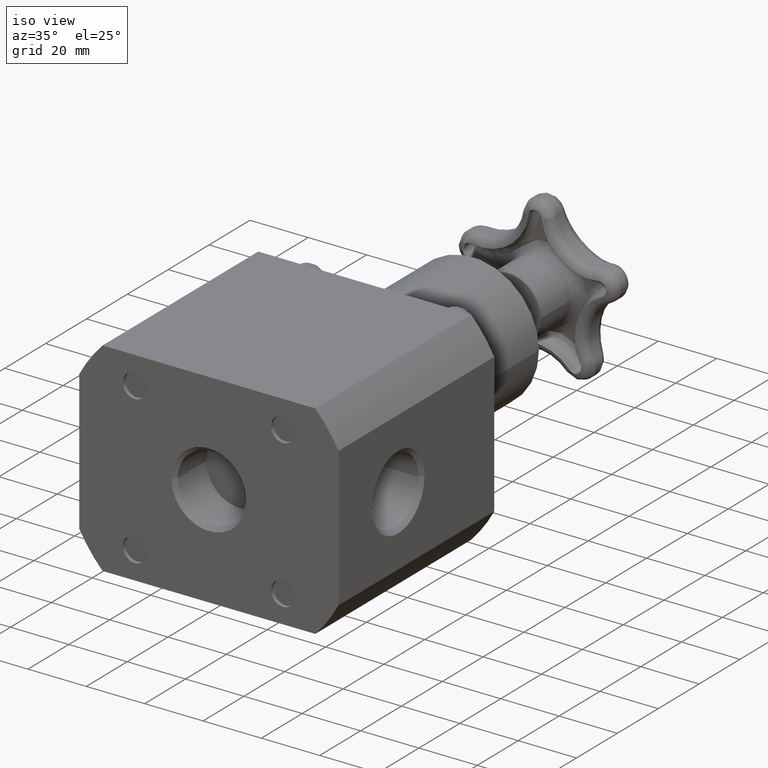
[diagram: clean part render]
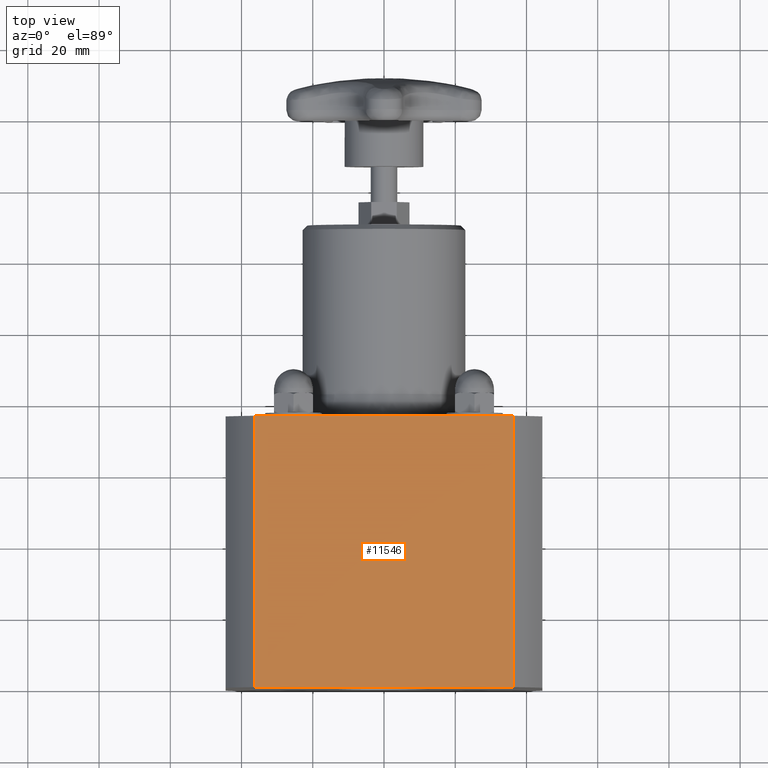
[diagram: tour spotlight — one face highlighted and labeled with its STEP entity id]
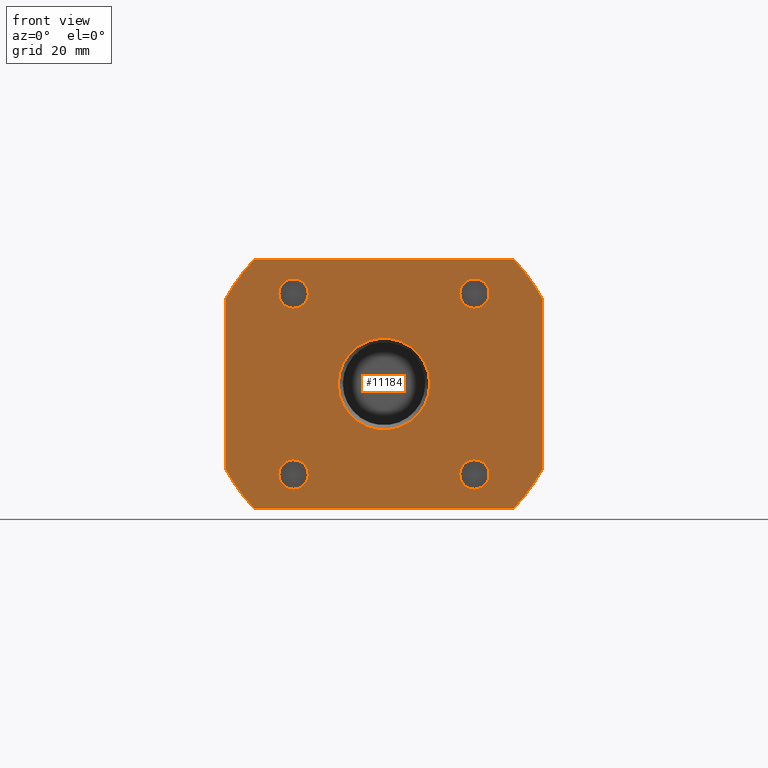
[diagram: tour spotlight — one face highlighted and labeled with its STEP entity id]
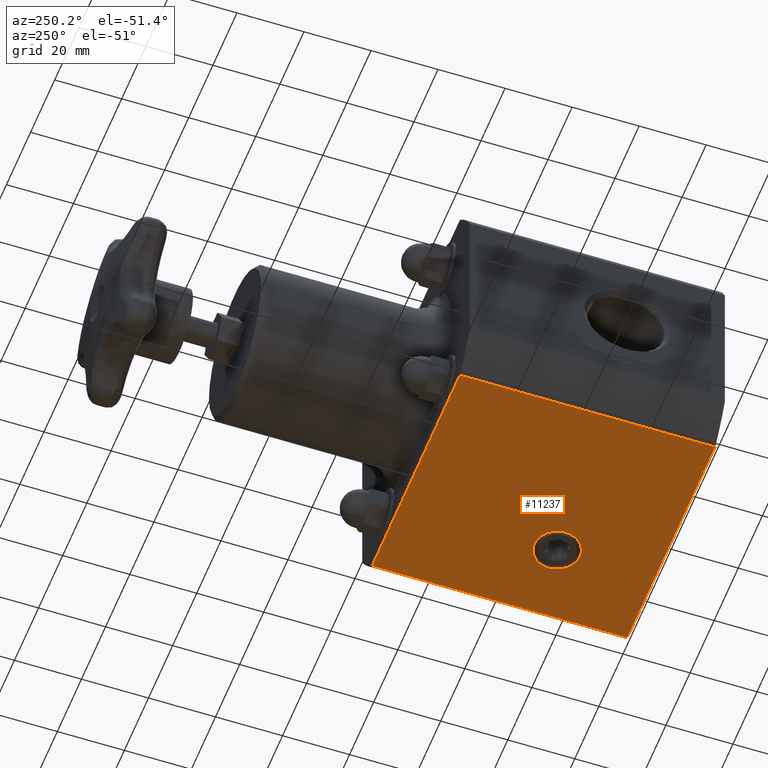
[diagram: tour spotlight — one face highlighted and labeled with its STEP entity id]
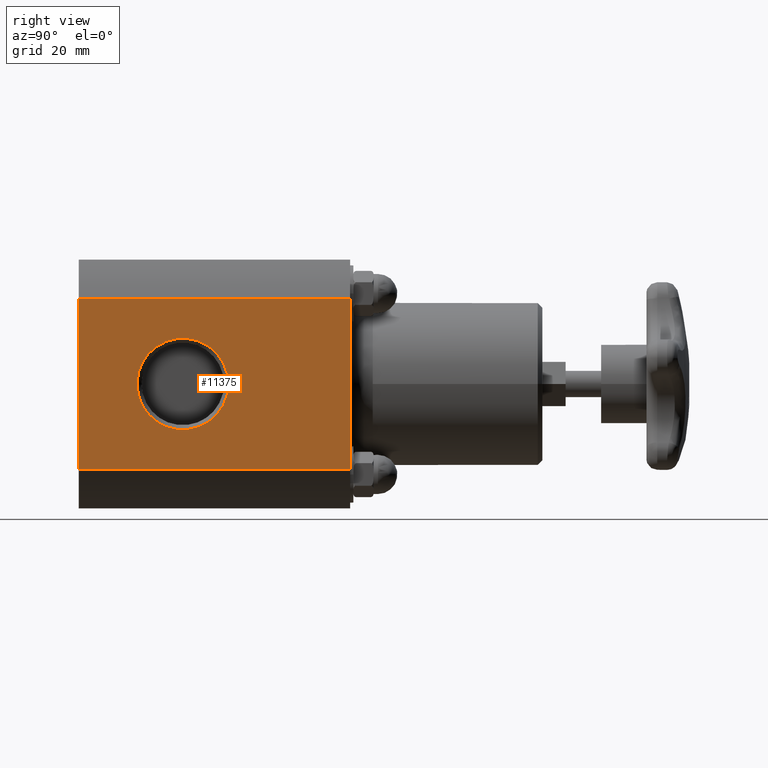
[diagram: tour spotlight — one face highlighted and labeled with its STEP entity id]
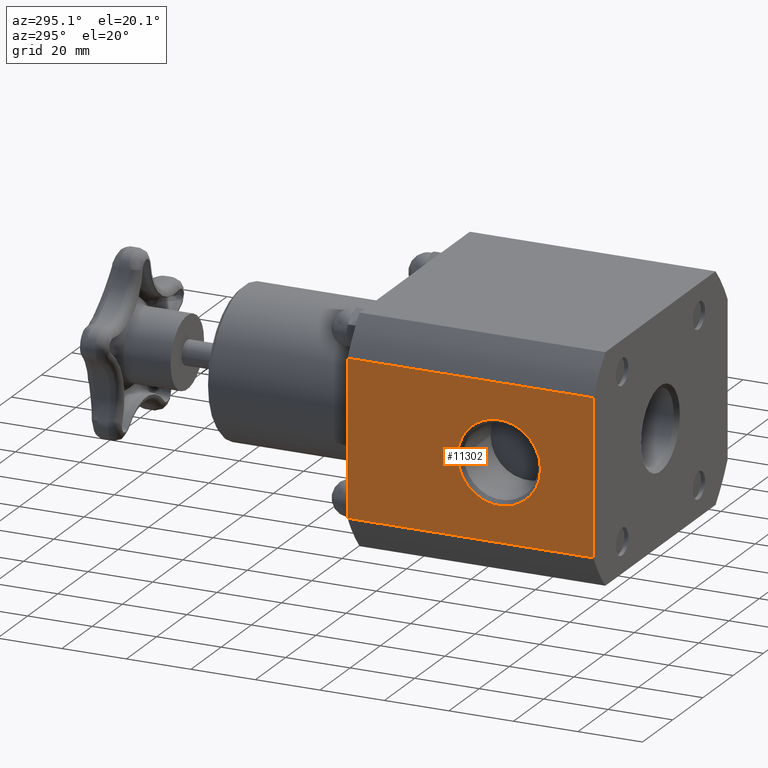
[diagram: tour spotlight — one face highlighted and labeled with its STEP entity id]
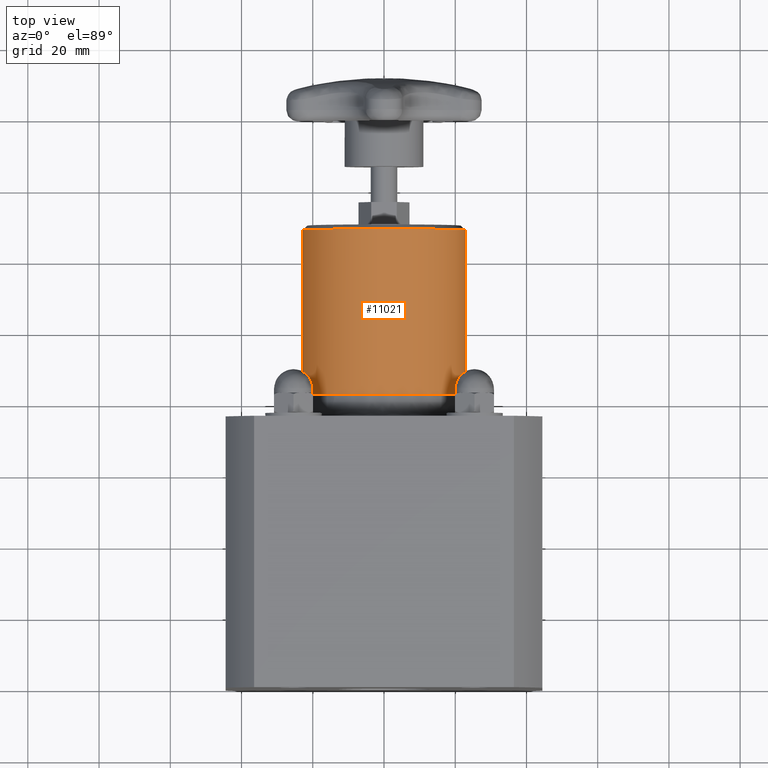
[diagram: tour spotlight — one face highlighted and labeled with its STEP entity id]
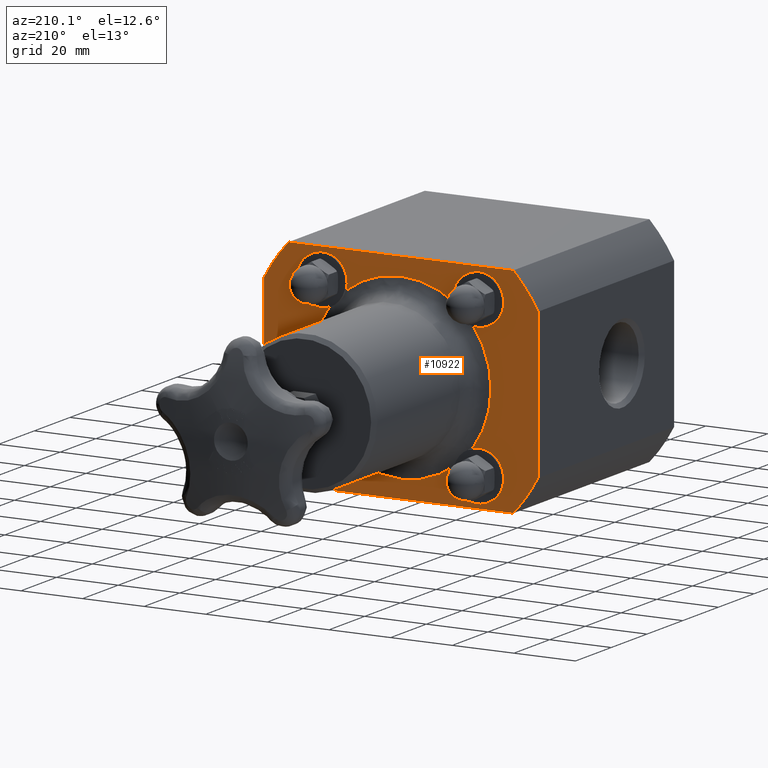
[diagram: tour spotlight — one face highlighted and labeled with its STEP entity id]
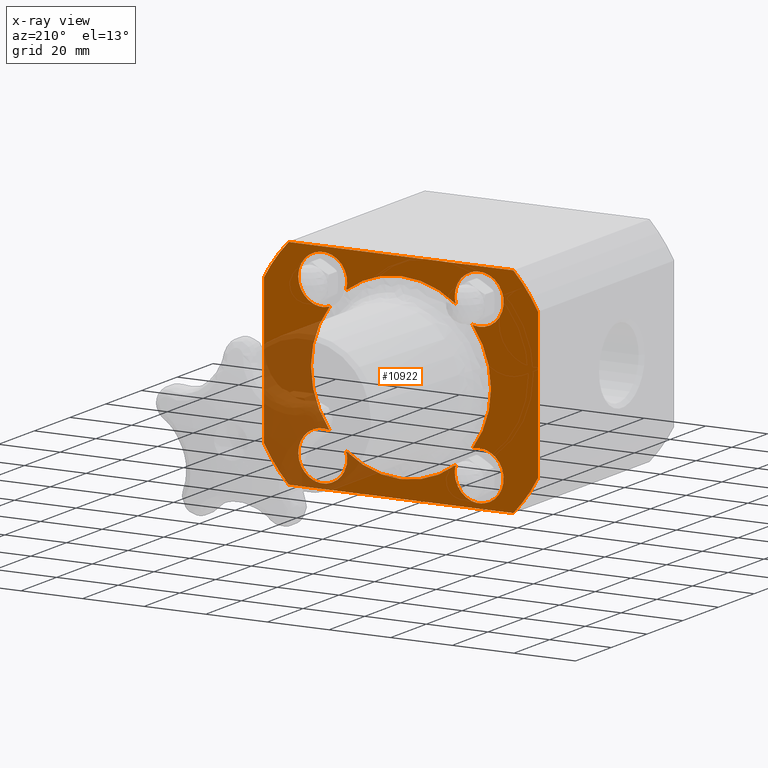
[diagram: x-ray of the same camera — body ghosted, this tour face saturated]
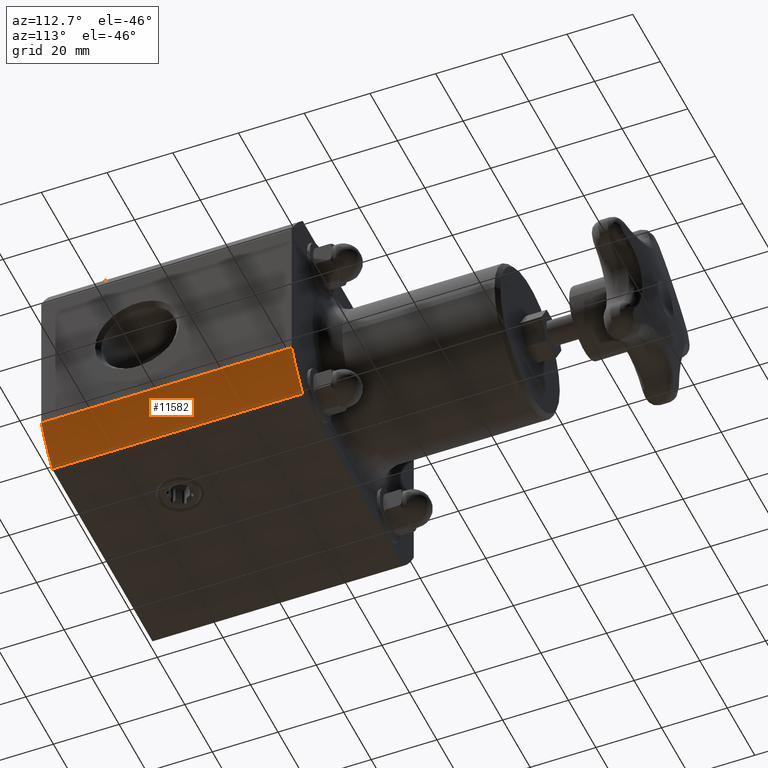
[diagram: tour spotlight — one face highlighted and labeled with its STEP entity id]
A machine part: a face-by-face anatomy tour. The part has 326 B-rep faces; the first image is the clean iso view, then the 8 largest visible faces are spotlighted one at a time (largest first), each with its STEP entity span.

Face 1 — top view, entity #11546. In plain terms, the highlighted planar face has unit normal (0, 0, 1).
Definition (entity closure, byte-faithful):
#10846=CARTESIAN_POINT('',(-1.435106703349965,3.000000000000000,1.375000000000000));
#10847=VERTEX_POINT('',#10846);
#10855=CARTESIAN_POINT('',(1.435106703349964,3.000000000000001,1.374999999999999));
#10856=VERTEX_POINT('',#10855);
#10857=CARTESIAN_POINT('',(1.435106703349964,3.000000000000001,1.374999999999999));
#10858=DIRECTION('',(-1.0,0.0,0.0));
#10859=VECTOR('',#10858,2.870213406699929);
#10860=LINE('',#10857,#10859);
#10861=EDGE_CURVE('',#10856,#10847,#10860,.T.);
#11067=CARTESIAN_POINT('',(1.435106703349963,3.227068E-016,1.375000000000000));
#11068=VERTEX_POINT('',#11067);
#11078=CARTESIAN_POINT('',(-1.435106703349964,-1.111253E-015,1.375000000000000));
#11079=VERTEX_POINT('',#11078);
#11080=CARTESIAN_POINT('',(-1.435106703349964,-1.111253E-015,1.375000000000000));
#11081=DIRECTION('',(1.0,0.0,0.0));
#11082=VECTOR('',#11081,2.870213406699927);
#11083=LINE('',#11080,#11082);
#11084=EDGE_CURVE('',#11079,#11068,#11083,.T.);
#11525=CARTESIAN_POINT('',(1.435106703349963,3.227068E-016,1.375000000000000));
#11526=DIRECTION('',(0.0,0.0,1.0));
#11527=DIRECTION('',(1.0,0.0,0.0));
#11528=AXIS2_PLACEMENT_3D('',#11525,#11526,#11527);
#11529=PLANE('',#11528);
#11530=CARTESIAN_POINT('',(-1.435106703349964,-1.111253E-015,1.375000000000000));
#11531=DIRECTION('',(0.0,1.0,0.0));
#11532=VECTOR('',#11531,3.000000000000001);
#11533=LINE('',#11530,#11532);
#11534=EDGE_CURVE('',#11079,#10847,#11533,.T.);
#11535=ORIENTED_EDGE('',*,*,#11534,.F.);
#11536=ORIENTED_EDGE('',*,*,#11084,.T.);
#11537=CARTESIAN_POINT('',(1.435106703349963,3.227068E-016,1.375000000000000));
#11538=DIRECTION('',(0.0,1.0,0.0));
#11539=VECTOR('',#11538,3.000000000000001);
#11540=LINE('',#11537,#11539);
#11541=EDGE_CURVE('',#11068,#10856,#11540,.T.);
#11542=ORIENTED_EDGE('',*,*,#11541,.T.);
#11543=ORIENTED_EDGE('',*,*,#10861,.T.);
#11544=EDGE_LOOP('',(#11535,#11536,#11542,#11543));
#11545=FACE_OUTER_BOUND('',#11544,.T.);
#11546=ADVANCED_FACE('',(#11545),#11529,.T.);

Face 2 — front view, entity #11184. In plain terms, the highlighted planar face has unit normal (0, 1, 0).
Definition (entity closure, byte-faithful):
#11038=CARTESIAN_POINT('',(-0.505500000000000,-2.525480E-016,-1.025650E-016));
#11039=VERTEX_POINT('',#11038);
#11040=CARTESIAN_POINT('',(0.0,0.0,0.0));
#11041=DIRECTION('',(0.0,-1.0,0.0));
#11042=DIRECTION('',(1.0,0.0,0.0));
#11043=AXIS2_PLACEMENT_3D('',#11040,#11041,#11042);
#11044=CIRCLE('',#11043,0.505500000000000);
#11045=EDGE_CURVE('',#11039,#11039,#11044,.T.);
#11062=CARTESIAN_POINT('',(1.311287E-016,4.042744E-032,8.748050E-017));
#11063=DIRECTION('',(0.0,1.0,0.0));
#11064=DIRECTION('',(0.0,0.0,-1.0));
#11065=AXIS2_PLACEMENT_3D('',#11062,#11063,#11064);
#11066=PLANE('',#11065);
#11067=CARTESIAN_POINT('',(1.435106703349963,3.227068E-016,1.375000000000000));
#11068=VERTEX_POINT('',#11067);
#11069=CARTESIAN_POINT('',(1.750000000000000,6.041433E-016,0.942155109310564));
#11070=VERTEX_POINT('',#11069);
#11071=CARTESIAN_POINT('',(0.0,0.0,0.0));
#11072=DIRECTION('',(0.0,1.0,0.0));
#11073=DIRECTION('',(1.0,0.0,0.0));
#11074=AXIS2_PLACEMENT_3D('',#11071,#11072,#11073);
#11075=CIRCLE('',#11074,1.987500000000000);
#11076=EDGE_CURVE('',#11068,#11070,#11075,.T.);
#11077=ORIENTED_EDGE('',*,*,#11076,.F.);
#11078=CARTESIAN_POINT('',(-1.435106703349964,-1.111253E-015,1.375000000000000));
#11079=VERTEX_POINT('',#11078);
#11080=CARTESIAN_POINT('',(-1.435106703349964,-1.111253E-015,1.375000000000000));
#11081=DIRECTION('',(1.0,0.0,0.0));
#11082=VECTOR('',#11081,2.870213406699927);
#11083=LINE('',#11080,#11082);
#11084=EDGE_CURVE('',#11079,#11068,#11083,.T.);
#11085=ORIENTED_EDGE('',*,*,#11084,.F.);
#11086=CARTESIAN_POINT('',(-1.750000000000000,-1.144458E-015,0.942155109310564));
#11087=VERTEX_POINT('',#11086);
#11088=CARTESIAN_POINT('',(0.0,0.0,0.0));
#11089=DIRECTION('',(0.0,1.0,0.0));
#11090=DIRECTION('',(1.0,0.0,0.0));
#11091=AXIS2_PLACEMENT_3D('',#11088,#11089,#11090);
#11092=CIRCLE('',#11091,1.987500000000000);
#11093=EDGE_CURVE('',#11087,#11079,#11092,.T.);
#11094=ORIENTED_EDGE('',*,*,#11093,.F.);
#11095=CARTESIAN_POINT('',(-1.750000000000000,-6.041433E-016,-0.942155109310563));
#11096=VERTEX_POINT('',#11095);
#11097=CARTESIAN_POINT('',(-1.750000000000000,-6.041433E-016,-0.942155109310563));
#11098=DIRECTION('',(0.0,0.0,1.0));
#11099=VECTOR('',#11098,1.884310218621127);
#11100=LINE('',#11097,#11099);
#11101=EDGE_CURVE('',#11096,#11087,#11100,.T.);
#11102=ORIENTED_EDGE('',*,*,#11101,.F.);
#11103=CARTESIAN_POINT('',(-1.435106703349964,-3.227068E-016,-1.375000000000000));
#11104=VERTEX_POINT('',#11103);
#11105=CARTESIAN_POINT('',(0.0,0.0,0.0));
#11106=DIRECTION('',(0.0,1.0,0.0));
#11107=DIRECTION('',(1.0,0.0,0.0));
#11108=AXIS2_PLACEMENT_3D('',#11105,#11106,#11107);
#11109=CIRCLE('',#11108,1.987500000000000);
#11110=EDGE_CURVE('',#11104,#11096,#11109,.T.);
#11111=ORIENTED_EDGE('',*,*,#11110,.F.);
#11112=CARTESIAN_POINT('',(1.435106703349963,1.111253E-015,-1.375000000000000));
#11113=VERTEX_POINT('',#11112);
#11114=CARTESIAN_POINT('',(1.435106703349963,1.111253E-015,-1.375000000000000));
#11115=DIRECTION('',(-1.0,0.0,0.0));
#11116=VECTOR('',#11115,2.870213406699928);
#11117=LINE('',#11114,#11116);
#11118=EDGE_CURVE('',#11113,#11104,#11117,.T.);
#11119=ORIENTED_EDGE('',*,*,#11118,.F.);
#11120=CARTESIAN_POINT('',(1.750000000000000,1.144458E-015,-0.942155109310565));
#11121=VERTEX_POINT('',#11120);
#11122=CARTESIAN_POINT('',(0.0,0.0,0.0));
#11123=DIRECTION('',(0.0,1.0,0.0));
#11124=DIRECTION('',(1.0,0.0,0.0));
#11125=AXIS2_PLACEMENT_3D('',#11122,#11123,#11124);
#11126=CIRCLE('',#11125,1.987500000000000);
#11127=EDGE_CURVE('',#11121,#11113,#11126,.T.);
#11128=ORIENTED_EDGE('',*,*,#11127,.F.);
#11129=CARTESIAN_POINT('',(1.750000000000000,6.041433E-016,0.942155109310564));
#11130=DIRECTION('',(0.0,0.0,-1.0));
#11131=VECTOR('',#11130,1.884310218621129);
#11132=LINE('',#11129,#11131);
#11133=EDGE_CURVE('',#11070,#11121,#11132,.T.);
#11134=ORIENTED_EDGE('',*,*,#11133,.F.);
#11135=EDGE_LOOP('',(#11077,#11085,#11094,#11102,#11111,#11119,#11128,#11134));
#11136=FACE_OUTER_BOUND('',#11135,.T.);
#11137=CARTESIAN_POINT('',(-1.162500000000000,-8.675294E-016,1.000000000000000));
#11138=VERTEX_POINT('',#11137);
#11139=CARTESIAN_POINT('',(-1.0,-7.863444E-016,1.0));
#11140=DIRECTION('',(0.0,1.0,0.0));
#11141=DIRECTION('',(-1.0,0.0,0.0));
#11142=AXIS2_PLACEMENT_3D('',#11139,#11140,#11141);
#11143=CIRCLE('',#11142,0.162500000000000);
#11144=EDGE_CURVE('',#11138,#11138,#11143,.T.);
#11145=ORIENTED_EDGE('',*,*,#11144,.T.);
#11146=EDGE_LOOP('',(#11145));
#11147=FACE_BOUND('',#11146,.T.);
#11148=CARTESIAN_POINT('',(0.837500000000000,1.316713E-016,1.0));
#11149=VERTEX_POINT('',#11148);
#11150=CARTESIAN_POINT('',(1.0,2.128564E-016,1.0));
#11151=DIRECTION('',(0.0,1.0,0.0));
#11152=DIRECTION('',(-1.0,0.0,0.0));
#11153=AXIS2_PLACEMENT_3D('',#11150,#11151,#11152);
#11154=CIRCLE('',#11153,0.162500000000000);
#11155=EDGE_CURVE('',#11149,#11149,#11154,.T.);
#11156=ORIENTED_EDGE('',*,*,#11155,.T.);
#11157=EDGE_LOOP('',(#11156));
#11158=FACE_BOUND('',#11157,.T.);
#11159=CARTESIAN_POINT('',(-1.162500000000000,-2.940414E-016,-1.000000000000000));
#11160=VERTEX_POINT('',#11159);
#11161=CARTESIAN_POINT('',(-1.0,-2.128564E-016,-1.0));
#11162=DIRECTION('',(0.0,1.0,0.0));
#11163=DIRECTION('',(-1.0,0.0,0.0));
#11164=AXIS2_PLACEMENT_3D('',#11161,#11162,#11163);
#11165=CIRCLE('',#11164,0.162500000000000);
#11166=EDGE_CURVE('',#11160,#11160,#11165,.T.);
#11167=ORIENTED_EDGE('',*,*,#11166,.T.);
#11168=EDGE_LOOP('',(#11167));
#11169=FACE_BOUND('',#11168,.T.);
#11170=CARTESIAN_POINT('',(0.837500000000000,7.051593E-016,-1.0));
#11171=VERTEX_POINT('',#11170);
#11172=CARTESIAN_POINT('',(1.0,7.863444E-016,-1.0));
#11173=DIRECTION('',(0.0,1.0,0.0));
#11174=DIRECTION('',(-1.0,0.0,0.0));
#11175=AXIS2_PLACEMENT_3D('',#11172,#11173,#11174);
#11176=CIRCLE('',#11175,0.162500000000000);
#11177=EDGE_CURVE('',#11171,#11171,#11176,.T.);
#11178=ORIENTED_EDGE('',*,*,#11177,.T.);
#11179=EDGE_LOOP('',(#11178));
#11180=FACE_BOUND('',#11179,.T.);
#11181=ORIENTED_EDGE('',*,*,#11045,.F.);
#11182=EDGE_LOOP('',(#11181));
#11183=FACE_BOUND('',#11182,.T.);
#11184=ADVANCED_FACE('',(#11136,#11147,#11158,#11169,#11180,#11183),#11066,.F.);

Face 3 — auxiliary view, entity #11237. In plain terms, the highlighted planar face has unit normal (0, 0, -1).
Definition (entity closure, byte-faithful):
#10880=CARTESIAN_POINT('',(1.435106703349963,3.000000000000001,-1.375000000000001));
#10881=VERTEX_POINT('',#10880);
#10889=CARTESIAN_POINT('',(-1.435106703349966,3.000000000000000,-1.375000000000000));
#10890=VERTEX_POINT('',#10889);
#10891=CARTESIAN_POINT('',(-1.435106703349966,3.000000000000000,-1.375000000000000));
#10892=DIRECTION('',(1.0,0.0,0.0));
#10893=VECTOR('',#10892,2.870213406699928);
#10894=LINE('',#10891,#10893);
#10895=EDGE_CURVE('',#10890,#10881,#10894,.T.);
#11103=CARTESIAN_POINT('',(-1.435106703349964,-3.227068E-016,-1.375000000000000));
#11104=VERTEX_POINT('',#11103);
#11112=CARTESIAN_POINT('',(1.435106703349963,1.111253E-015,-1.375000000000000));
#11113=VERTEX_POINT('',#11112);
#11114=CARTESIAN_POINT('',(1.435106703349963,1.111253E-015,-1.375000000000000));
#11115=DIRECTION('',(-1.0,0.0,0.0));
#11116=VECTOR('',#11115,2.870213406699928);
#11117=LINE('',#11114,#11116);
#11118=EDGE_CURVE('',#11113,#11104,#11117,.T.);
#11201=CARTESIAN_POINT('',(0.529999999999999,1.418750000000000,-1.375000000000000));
#11202=VERTEX_POINT('',#11201);
#11203=CARTESIAN_POINT('',(0.529999999999999,1.150000000000001,-1.375000000000000));
#11204=DIRECTION('',(0.0,0.0,-1.0));
#11205=DIRECTION('',(0.0,-1.0,0.0));
#11206=AXIS2_PLACEMENT_3D('',#11203,#11204,#11205);
#11207=CIRCLE('',#11206,0.268750000000000);
#11208=EDGE_CURVE('',#11202,#11202,#11207,.T.);
#11213=CARTESIAN_POINT('',(-1.435106703349964,-3.227068E-016,-1.375000000000000));
#11214=DIRECTION('',(0.0,0.0,-1.0));
#11215=DIRECTION('',(-1.0,0.0,0.0));
#11216=AXIS2_PLACEMENT_3D('',#11213,#11214,#11215);
#11217=PLANE('',#11216);
#11218=CARTESIAN_POINT('',(1.435106703349963,1.111253E-015,-1.375000000000000));
#11219=DIRECTION('',(0.0,1.0,0.0));
#11220=VECTOR('',#11219,3.0);
#11221=LINE('',#11218,#11220);
#11222=EDGE_CURVE('',#11113,#10881,#11221,.T.);
#11223=ORIENTED_EDGE('',*,*,#11222,.F.);
#11224=ORIENTED_EDGE('',*,*,#11118,.T.);
#11225=CARTESIAN_POINT('',(-1.435106703349964,-3.227068E-016,-1.375000000000000));
#11226=DIRECTION('',(0.0,1.0,0.0));
#11227=VECTOR('',#11226,3.0);
#11228=LINE('',#11225,#11227);
#11229=EDGE_CURVE('',#11104,#10890,#11228,.T.);
#11230=ORIENTED_EDGE('',*,*,#11229,.T.);
#11231=ORIENTED_EDGE('',*,*,#10895,.T.);
#11232=EDGE_LOOP('',(#11223,#11224,#11230,#11231));
#11233=FACE_OUTER_BOUND('',#11232,.T.);
#11234=ORIENTED_EDGE('',*,*,#11208,.F.);
#11235=EDGE_LOOP('',(#11234));
#11236=FACE_BOUND('',#11235,.T.);
#11237=ADVANCED_FACE('',(#11233,#11236),#11217,.T.);

Face 4 — right view, entity #11375. In plain terms, the highlighted planar face has unit normal (1, 0, 0).
Definition (entity closure, byte-faithful):
#10863=CARTESIAN_POINT('',(1.749999999999999,3.000000000000002,0.942155109310564));
#10864=VERTEX_POINT('',#10863);
#10872=CARTESIAN_POINT('',(1.749999999999998,3.000000000000002,-0.942155109310565));
#10873=VERTEX_POINT('',#10872);
#10874=CARTESIAN_POINT('',(1.749999999999999,3.000000000000002,-0.942155109310565));
#10875=DIRECTION('',(0.0,0.0,1.0));
#10876=VECTOR('',#10875,1.884310218621129);
#10877=LINE('',#10874,#10876);
#10878=EDGE_CURVE('',#10873,#10864,#10877,.T.);
#11069=CARTESIAN_POINT('',(1.750000000000000,6.041433E-016,0.942155109310564));
#11070=VERTEX_POINT('',#11069);
#11120=CARTESIAN_POINT('',(1.750000000000000,1.144458E-015,-0.942155109310565));
#11121=VERTEX_POINT('',#11120);
#11129=CARTESIAN_POINT('',(1.750000000000000,6.041433E-016,0.942155109310564));
#11130=DIRECTION('',(0.0,0.0,-1.0));
#11131=VECTOR('',#11130,1.884310218621129);
#11132=LINE('',#11129,#11131);
#11133=EDGE_CURVE('',#11070,#11121,#11132,.T.);
#11319=CARTESIAN_POINT('',(1.749999999999999,1.655500000000000,6.588119E-016));
#11320=VERTEX_POINT('',#11319);
#11321=CARTESIAN_POINT('',(1.749999999999999,1.149999999999999,4.519569E-016));
#11322=DIRECTION('',(1.0,0.0,0.0));
#11323=DIRECTION('',(0.0,-1.0,0.0));
#11324=AXIS2_PLACEMENT_3D('',#11321,#11322,#11323);
#11325=CIRCLE('',#11324,0.505500000000001);
#11326=EDGE_CURVE('',#11320,#11320,#11325,.T.);
#11351=CARTESIAN_POINT('',(1.750000000000000,1.144458E-015,-0.942155109310565));
#11352=DIRECTION('',(1.0,0.0,0.0));
#11353=DIRECTION('',(0.0,0.0,-1.0));
#11354=AXIS2_PLACEMENT_3D('',#11351,#11352,#11353);
#11355=PLANE('',#11354);
#11356=CARTESIAN_POINT('',(1.750000000000000,6.041433E-016,0.942155109310564));
#11357=DIRECTION('',(0.0,1.0,0.0));
#11358=VECTOR('',#11357,3.000000000000001);
#11359=LINE('',#11356,#11358);
#11360=EDGE_CURVE('',#11070,#10864,#11359,.T.);
#11361=ORIENTED_EDGE('',*,*,#11360,.F.);
#11362=ORIENTED_EDGE('',*,*,#11133,.T.);
#11363=CARTESIAN_POINT('',(1.750000000000000,1.144458E-015,-0.942155109310565));
#11364=DIRECTION('',(0.0,1.0,0.0));
#11365=VECTOR('',#11364,3.000000000000000);
#11366=LINE('',#11363,#11365);
#11367=EDGE_CURVE('',#11121,#10873,#11366,.T.);
#11368=ORIENTED_EDGE('',*,*,#11367,.T.);
#11369=ORIENTED_EDGE('',*,*,#10878,.T.);
#11370=EDGE_LOOP('',(#11361,#11362,#11368,#11369));
#11371=FACE_OUTER_BOUND('',#11370,.T.);
#11372=ORIENTED_EDGE('',*,*,#11326,.F.);
#11373=EDGE_LOOP('',(#11372));
#11374=FACE_BOUND('',#11373,.T.);
#11375=ADVANCED_FACE('',(#11371,#11374),#11355,.T.);

Face 5 — auxiliary view, entity #11302. In plain terms, the highlighted planar face has unit normal (-1, 0, 0).
Definition (entity closure, byte-faithful):
#10836=CARTESIAN_POINT('',(-1.750000000000001,2.999999999999999,0.942155109310565));
#10837=VERTEX_POINT('',#10836);
#10838=CARTESIAN_POINT('',(-1.750000000000002,2.999999999999999,-0.942155109310563));
#10839=VERTEX_POINT('',#10838);
#10840=CARTESIAN_POINT('',(-1.750000000000001,2.999999999999999,0.942155109310565));
#10841=DIRECTION('',(0.0,0.0,-1.0));
#10842=VECTOR('',#10841,1.884310218621128);
#10843=LINE('',#10840,#10842);
#10844=EDGE_CURVE('',#10837,#10839,#10843,.T.);
#11086=CARTESIAN_POINT('',(-1.750000000000000,-1.144458E-015,0.942155109310564));
#11087=VERTEX_POINT('',#11086);
#11095=CARTESIAN_POINT('',(-1.750000000000000,-6.041433E-016,-0.942155109310563));
#11096=VERTEX_POINT('',#11095);
#11097=CARTESIAN_POINT('',(-1.750000000000000,-6.041433E-016,-0.942155109310563));
#11098=DIRECTION('',(0.0,0.0,1.0));
#11099=VECTOR('',#11098,1.884310218621127);
#11100=LINE('',#11097,#11099);
#11101=EDGE_CURVE('',#11096,#11087,#11100,.T.);
#11254=CARTESIAN_POINT('',(-1.750000000000001,1.655499999999998,2.720402E-016));
#11255=VERTEX_POINT('',#11254);
#11256=CARTESIAN_POINT('',(-1.750000000000001,1.149999999999998,1.889970E-016));
#11257=DIRECTION('',(-1.0,0.0,0.0));
#11258=DIRECTION('',(0.0,-1.0,0.0));
#11259=AXIS2_PLACEMENT_3D('',#11256,#11257,#11258);
#11260=CIRCLE('',#11259,0.505500000000001);
#11261=EDGE_CURVE('',#11255,#11255,#11260,.T.);
#11278=CARTESIAN_POINT('',(-1.750000000000000,-1.144458E-015,0.942155109310564));
#11279=DIRECTION('',(-1.0,0.0,0.0));
#11280=DIRECTION('',(0.0,0.0,1.0));
#11281=AXIS2_PLACEMENT_3D('',#11278,#11279,#11280);
#11282=PLANE('',#11281);
#11283=CARTESIAN_POINT('',(-1.750000000000000,-6.041433E-016,-0.942155109310563));
#11284=DIRECTION('',(0.0,1.0,0.0));
#11285=VECTOR('',#11284,3.000000000000000);
#11286=LINE('',#11283,#11285);
#11287=EDGE_CURVE('',#11096,#10839,#11286,.T.);
#11288=ORIENTED_EDGE('',*,*,#11287,.F.);
#11289=ORIENTED_EDGE('',*,*,#11101,.T.);
#11290=CARTESIAN_POINT('',(-1.750000000000000,-1.144458E-015,0.942155109310564));
#11291=DIRECTION('',(0.0,1.0,0.0));
#11292=VECTOR('',#11291,3.000000000000000);
#11293=LINE('',#11290,#11292);
#11294=EDGE_CURVE('',#11087,#10837,#11293,.T.);
#11295=ORIENTED_EDGE('',*,*,#11294,.T.);
#11296=ORIENTED_EDGE('',*,*,#10844,.T.);
#11297=EDGE_LOOP('',(#11288,#11289,#11295,#11296));
#11298=FACE_OUTER_BOUND('',#11297,.T.);
#11299=ORIENTED_EDGE('',*,*,#11261,.F.);
#11300=EDGE_LOOP('',(#11299));
#11301=FACE_BOUND('',#11300,.T.);
#11302=ADVANCED_FACE('',(#11298,#11301),#11282,.T.);

Face 6 — top view, entity #11021. In plain terms, the highlighted cylindrical surface (bore or boss wall) has radius 22.86 mm, axis along (0, -1, -0).
Definition (entity closure, byte-faithful):
#8510=CARTESIAN_POINT('',(0.899999999999999,3.250000000000001,-3.566161E-016));
#8511=VERTEX_POINT('',#8510);
#8512=CARTESIAN_POINT('',(-1.268648E-015,3.250000000000000,-5.510831E-017));
#8513=DIRECTION('',(0.0,-1.0,0.0));
#8514=DIRECTION('',(1.0,0.0,0.0));
#8515=AXIS2_PLACEMENT_3D('',#8512,#8513,#8514);
#8516=CIRCLE('',#8515,0.900000000000000);
#8517=EDGE_CURVE('',#8511,#8511,#8516,.T.);
#10995=CARTESIAN_POINT('',(0.899999999999997,5.075000000000001,-3.566161E-016));
#10996=VERTEX_POINT('',#10995);
#10997=CARTESIAN_POINT('',(-2.482714E-015,5.075000000000000,-5.510831E-017));
#10998=DIRECTION('',(0.0,-1.0,0.0));
#10999=DIRECTION('',(1.0,0.0,0.0));
#11000=AXIS2_PLACEMENT_3D('',#10997,#10998,#10999);
#11001=CIRCLE('',#11000,0.900000000000000);
#11002=EDGE_CURVE('',#10996,#10996,#11001,.T.);
#11010=CARTESIAN_POINT('',(-1.875681E-015,4.162500000000000,-5.510831E-017));
#11011=DIRECTION('',(6.652417E-016,-1.0,-8.199551E-032));
#11012=DIRECTION('',(1.0,0.0,0.0));
#11013=AXIS2_PLACEMENT_3D('',#11010,#11011,#11012);
#11014=CYLINDRICAL_SURFACE('',#11013,0.900000000000000);
#11015=ORIENTED_EDGE('',*,*,#8517,.F.);
#11016=EDGE_LOOP('',(#11015));
#11017=FACE_OUTER_BOUND('',#11016,.T.);
#11018=ORIENTED_EDGE('',*,*,#11002,.T.);
#11019=EDGE_LOOP('',(#11018));
#11020=FACE_BOUND('',#11019,.T.);
#11021=ADVANCED_FACE('',(#11017,#11020),#11014,.T.);

Face 7 — auxiliary view, entity #10922. An x-ray twin of the same camera follows (body ghosted, this face saturated) — the face is partly hidden behind the body. In plain terms, the highlighted planar face has unit normal (0, 1, 0).
Definition (entity closure, byte-faithful):
#8423=CARTESIAN_POINT('',(-0.700032200196468,3.000000000000002,-0.912389674803532));
#8424=VERTEX_POINT('',#8423);
#8425=CARTESIAN_POINT('',(-0.912389674803528,3.000000000000002,-0.700032200196473));
#8426=VERTEX_POINT('',#8425);
#8444=CARTESIAN_POINT('',(-0.999999999999996,3.000000000000004,-1.000000000000000));
#8445=DIRECTION('',(0.0,-1.0,0.0));
#8446=DIRECTION('',(1.0,0.0,0.0));
#8447=AXIS2_PLACEMENT_3D('',#8444,#8445,#8446);
#8448=CIRCLE('',#8447,0.312500000000000);
#8449=EDGE_CURVE('',#8426,#8424,#8448,.T.);
#8522=CARTESIAN_POINT('',(-0.912389674803529,3.000000000000001,0.700032200196472));
#8523=VERTEX_POINT('',#8522);
#8524=CARTESIAN_POINT('',(-1.102337E-015,3.0,-5.510831E-017));
#8525=DIRECTION('',(0.0,-1.0,0.0));
#8526=DIRECTION('',(1.0,0.0,0.0));
#8527=AXIS2_PLACEMENT_3D('',#8524,#8525,#8526);
#8528=CIRCLE('',#8527,1.150000000000000);
#8529=EDGE_CURVE('',#8523,#8426,#8528,.T.);
#8531=CARTESIAN_POINT('',(-0.700032200196468,3.000000000000001,0.912389674803532));
#8532=VERTEX_POINT('',#8531);
#8550=CARTESIAN_POINT('',(0.700032200196480,3.000000000000000,0.912389674803521));
#8551=VERTEX_POINT('',#8550);
#8552=CARTESIAN_POINT('',(-1.102337E-015,3.0,-5.510831E-017));
#8553=DIRECTION('',(0.0,-1.0,0.0));
#8554=DIRECTION('',(1.0,0.0,0.0));
#8555=AXIS2_PLACEMENT_3D('',#8552,#8553,#8554);
#8556=CIRCLE('',#8555,1.150000000000000);
#8557=EDGE_CURVE('',#8551,#8532,#8556,.T.);
#8559=CARTESIAN_POINT('',(0.912389674803524,3.000000000000000,0.700032200196476));
#8560=VERTEX_POINT('',#8559);
#8578=CARTESIAN_POINT('',(0.912389674803523,3.000000000000001,-0.700032200196477));
#8579=VERTEX_POINT('',#8578);
#8580=CARTESIAN_POINT('',(-1.102337E-015,3.0,-5.510831E-017));
#8581=DIRECTION('',(0.0,-1.0,0.0));
#8582=DIRECTION('',(1.0,0.0,0.0));
#8583=AXIS2_PLACEMENT_3D('',#8580,#8581,#8582);
#8584=CIRCLE('',#8583,1.150000000000000);
#8585=EDGE_CURVE('',#8579,#8560,#8584,.T.);
#8587=CARTESIAN_POINT('',(0.700032200196481,3.000000000000001,-0.912389674803521));
#8588=VERTEX_POINT('',#8587);
#8606=CARTESIAN_POINT('',(-1.102337E-015,3.0,-5.510831E-017));
#8607=DIRECTION('',(0.0,-1.0,0.0));
#8608=DIRECTION('',(1.0,0.0,0.0));
#8609=AXIS2_PLACEMENT_3D('',#8606,#8607,#8608);
#8610=CIRCLE('',#8609,1.150000000000000);
#8611=EDGE_CURVE('',#8424,#8588,#8610,.T.);
#9702=CARTESIAN_POINT('',(1.000000000000005,3.000000000000002,-1.000000000000000));
#9703=DIRECTION('',(0.0,-1.0,0.0));
#9704=DIRECTION('',(1.0,0.0,0.0));
#9705=AXIS2_PLACEMENT_3D('',#9702,#9703,#9704);
#9706=CIRCLE('',#9705,0.312500000000000);
#9707=EDGE_CURVE('',#8588,#8579,#9706,.T.);
#10801=CARTESIAN_POINT('',(1.000000000000005,3.000000000000002,1.000000000000000));
#10802=DIRECTION('',(0.0,-1.0,0.0));
#10803=DIRECTION('',(1.0,0.0,0.0));
#10804=AXIS2_PLACEMENT_3D('',#10801,#10802,#10803);
#10805=CIRCLE('',#10804,0.312500000000000);
#10806=EDGE_CURVE('',#8560,#8551,#10805,.T.);
#10831=CARTESIAN_POINT('',(1.568749999999999,3.000000000000001,-5.806532E-016));
#10832=DIRECTION('',(0.0,1.0,0.0));
#10833=DIRECTION('',(0.0,0.0,1.0));
#10834=AXIS2_PLACEMENT_3D('',#10831,#10832,#10833);
#10835=PLANE('',#10834);
#10836=CARTESIAN_POINT('',(-1.750000000000001,2.999999999999999,0.942155109310565));
#10837=VERTEX_POINT('',#10836);
#10838=CARTESIAN_POINT('',(-1.750000000000002,2.999999999999999,-0.942155109310563));
#10839=VERTEX_POINT('',#10838);
#10840=CARTESIAN_POINT('',(-1.750000000000001,2.999999999999999,0.942155109310565));
#10841=DIRECTION('',(0.0,0.0,-1.0));
#10842=VECTOR('',#10841,1.884310218621128);
#10843=LINE('',#10840,#10842);
#10844=EDGE_CURVE('',#10837,#10839,#10843,.T.);
#10845=ORIENTED_EDGE('',*,*,#10844,.F.);
#10846=CARTESIAN_POINT('',(-1.435106703349965,3.000000000000000,1.375000000000000));
#10847=VERTEX_POINT('',#10846);
#10848=CARTESIAN_POINT('',(-1.102337E-015,3.000000000000000,-5.510831E-017));
#10849=DIRECTION('',(0.0,-1.0,0.0));
#10850=DIRECTION('',(1.0,0.0,0.0));
#10851=AXIS2_PLACEMENT_3D('',#10848,#10849,#10850);
#10852=CIRCLE('',#10851,1.987500000000001);
#10853=EDGE_CURVE('',#10847,#10837,#10852,.T.);
#10854=ORIENTED_EDGE('',*,*,#10853,.F.);
#10855=CARTESIAN_POINT('',(1.435106703349964,3.000000000000001,1.374999999999999));
#10856=VERTEX_POINT('',#10855);
#10857=CARTESIAN_POINT('',(1.435106703349964,3.000000000000001,1.374999999999999));
#10858=DIRECTION('',(-1.0,0.0,0.0));
#10859=VECTOR('',#10858,2.870213406699929);
#10860=LINE('',#10857,#10859);
#10861=EDGE_CURVE('',#10856,#10847,#10860,.T.);
#10862=ORIENTED_EDGE('',*,*,#10861,.F.);
#10863=CARTESIAN_POINT('',(1.749999999999999,3.000000000000002,0.942155109310564));
#10864=VERTEX_POINT('',#10863);
#10865=CARTESIAN_POINT('',(-1.102337E-015,3.000000000000000,-5.510831E-017));
#10866=DIRECTION('',(0.0,-1.0,0.0));
#10867=DIRECTION('',(1.0,0.0,0.0));
#10868=AXIS2_PLACEMENT_3D('',#10865,#10866,#10867);
#10869=CIRCLE('',#10868,1.987500000000001);
#10870=EDGE_CURVE('',#10864,#10856,#10869,.T.);
#10871=ORIENTED_EDGE('',*,*,#10870,.F.);
#10872=CARTESIAN_POINT('',(1.749999999999998,3.000000000000002,-0.942155109310565));
#10873=VERTEX_POINT('',#10872);
#10874=CARTESIAN_POINT('',(1.749999999999999,3.000000000000002,-0.942155109310565));
#10875=DIRECTION('',(0.0,0.0,1.0));
#10876=VECTOR('',#10875,1.884310218621129);
#10877=LINE('',#10874,#10876);
#10878=EDGE_CURVE('',#10873,#10864,#10877,.T.);
#10879=ORIENTED_EDGE('',*,*,#10878,.F.);
#10880=CARTESIAN_POINT('',(1.435106703349963,3.000000000000001,-1.375000000000001));
#10881=VERTEX_POINT('',#10880);
#10882=CARTESIAN_POINT('',(-1.102337E-015,3.000000000000000,-5.510831E-017));
#10883=DIRECTION('',(0.0,-1.0,0.0));
#10884=DIRECTION('',(1.0,0.0,0.0));
#10885=AXIS2_PLACEMENT_3D('',#10882,#10883,#10884);
#10886=CIRCLE('',#10885,1.987500000000001);
#10887=EDGE_CURVE('',#10881,#10873,#10886,.T.);
#10888=ORIENTED_EDGE('',*,*,#10887,.F.);
#10889=CARTESIAN_POINT('',(-1.435106703349966,3.000000000000000,-1.375000000000000));
#10890=VERTEX_POINT('',#10889);
#10891=CARTESIAN_POINT('',(-1.435106703349966,3.000000000000000,-1.375000000000000));
#10892=DIRECTION('',(1.0,0.0,0.0));
#10893=VECTOR('',#10892,2.870213406699928);
#10894=LINE('',#10891,#10893);
#10895=EDGE_CURVE('',#10890,#10881,#10894,.T.);
#10896=ORIENTED_EDGE('',*,*,#10895,.F.);
#10897=CARTESIAN_POINT('',(-1.102337E-015,3.000000000000000,-5.510831E-017));
#10898=DIRECTION('',(0.0,-1.0,0.0));
#10899=DIRECTION('',(1.0,0.0,0.0));
#10900=AXIS2_PLACEMENT_3D('',#10897,#10898,#10899);
#10901=CIRCLE('',#10900,1.987500000000001);
#10902=EDGE_CURVE('',#10839,#10890,#10901,.T.);
#10903=ORIENTED_EDGE('',*,*,#10902,.F.);
#10904=EDGE_LOOP('',(#10845,#10854,#10862,#10871,#10879,#10888,#10896,#10903));
#10905=FACE_OUTER_BOUND('',#10904,.T.);
#10906=ORIENTED_EDGE('',*,*,#8449,.T.);
#10907=ORIENTED_EDGE('',*,*,#8611,.T.);
#10908=ORIENTED_EDGE('',*,*,#9707,.T.);
#10909=ORIENTED_EDGE('',*,*,#8585,.T.);
#10910=ORIENTED_EDGE('',*,*,#10806,.T.);
#10911=ORIENTED_EDGE('',*,*,#8557,.T.);
#10912=CARTESIAN_POINT('',(-0.999999999999996,3.000000000000004,1.000000000000000));
#10913=DIRECTION('',(0.0,-1.0,0.0));
#10914=DIRECTION('',(1.0,0.0,0.0));
#10915=AXIS2_PLACEMENT_3D('',#10912,#10913,#10914);
#10916=CIRCLE('',#10915,0.312500000000000);
#10917=EDGE_CURVE('',#8532,#8523,#10916,.T.);
#10918=ORIENTED_EDGE('',*,*,#10917,.T.);
#10919=ORIENTED_EDGE('',*,*,#8529,.T.);
#10920=EDGE_LOOP('',(#10906,#10907,#10908,#10909,#10910,#10911,#10918,#10919));
#10921=FACE_BOUND('',#10920,.T.);
#10922=ADVANCED_FACE('',(#10905,#10921),#10835,.T.);

Face 8 — auxiliary view, entity #11582. In plain terms, the highlighted cylindrical surface (partial cylindrical patch) has radius 50.4825 mm, axis along (-0, 1, 0).
Definition (entity closure, byte-faithful):
#10872=CARTESIAN_POINT('',(1.749999999999998,3.000000000000002,-0.942155109310565));
#10873=VERTEX_POINT('',#10872);
#10880=CARTESIAN_POINT('',(1.435106703349963,3.000000000000001,-1.375000000000001));
#10881=VERTEX_POINT('',#10880);
#10882=CARTESIAN_POINT('',(-1.102337E-015,3.000000000000000,-5.510831E-017));
#10883=DIRECTION('',(0.0,-1.0,0.0));
#10884=DIRECTION('',(1.0,0.0,0.0));
#10885=AXIS2_PLACEMENT_3D('',#10882,#10883,#10884);
#10886=CIRCLE('',#10885,1.987500000000001);
#10887=EDGE_CURVE('',#10881,#10873,#10886,.T.);
#11112=CARTESIAN_POINT('',(1.435106703349963,1.111253E-015,-1.375000000000000));
#11113=VERTEX_POINT('',#11112);
#11120=CARTESIAN_POINT('',(1.750000000000000,1.144458E-015,-0.942155109310565));
#11121=VERTEX_POINT('',#11120);
#11122=CARTESIAN_POINT('',(0.0,0.0,0.0));
#11123=DIRECTION('',(0.0,1.0,0.0));
#11124=DIRECTION('',(1.0,0.0,0.0));
#11125=AXIS2_PLACEMENT_3D('',#11122,#11123,#11124);
#11126=CIRCLE('',#11125,1.987500000000000);
#11127=EDGE_CURVE('',#11121,#11113,#11126,.T.);
#11218=CARTESIAN_POINT('',(1.435106703349963,1.111253E-015,-1.375000000000000));
#11219=DIRECTION('',(0.0,1.0,0.0));
#11220=VECTOR('',#11219,3.0);
#11221=LINE('',#11218,#11220);
#11222=EDGE_CURVE('',#11113,#10881,#11221,.T.);
#11363=CARTESIAN_POINT('',(1.750000000000000,1.144458E-015,-0.942155109310565));
#11364=DIRECTION('',(0.0,1.0,0.0));
#11365=VECTOR('',#11364,3.000000000000000);
#11366=LINE('',#11363,#11365);
#11367=EDGE_CURVE('',#11121,#10873,#11366,.T.);
#11571=CARTESIAN_POINT('',(0.0,0.0,0.0));
#11572=DIRECTION('',(-4.996004E-016,1.0,2.867440E-016));
#11573=DIRECTION('',(1.0,0.0,0.0));
#11574=AXIS2_PLACEMENT_3D('',#11571,#11572,#11573);
#11575=CYLINDRICAL_SURFACE('',#11574,1.987500000000000);
#11576=ORIENTED_EDGE('',*,*,#11367,.F.);
#11577=ORIENTED_EDGE('',*,*,#11127,.T.);
#11578=ORIENTED_EDGE('',*,*,#11222,.T.);
#11579=ORIENTED_EDGE('',*,*,#10887,.T.);
#11580=EDGE_LOOP('',(#11576,#11577,#11578,#11579));
#11581=FACE_OUTER_BOUND('',#11580,.T.);
#11582=ADVANCED_FACE('',(#11581),#11575,.T.);